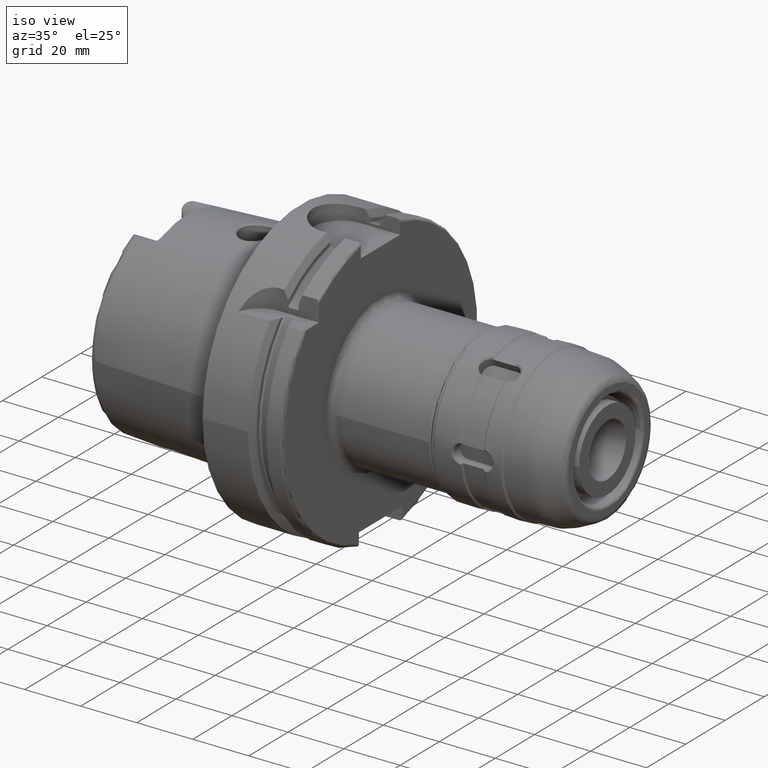
[diagram: clean part render]
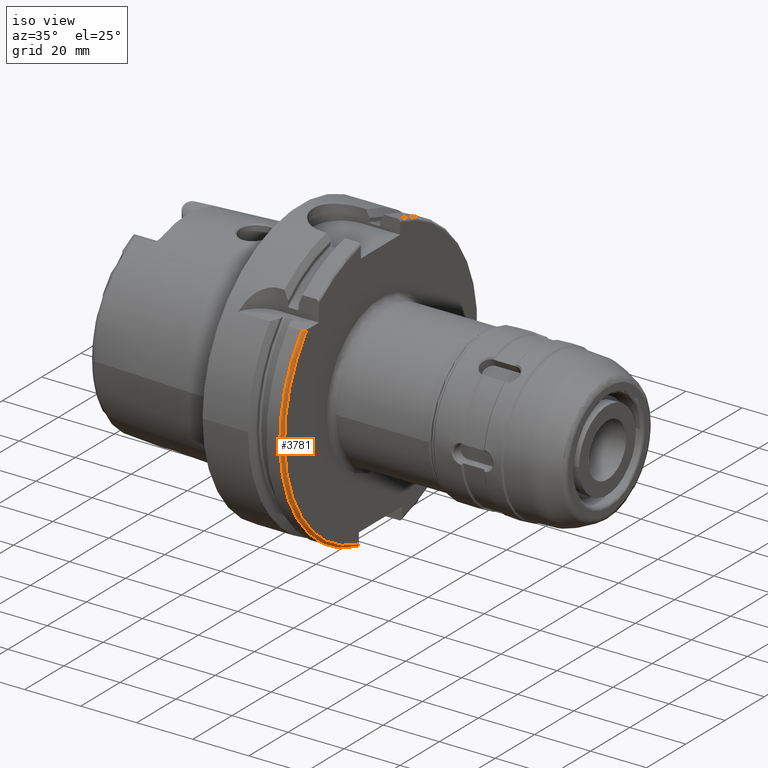
[diagram: same view with one face highlighted and labeled with its STEP entity id]
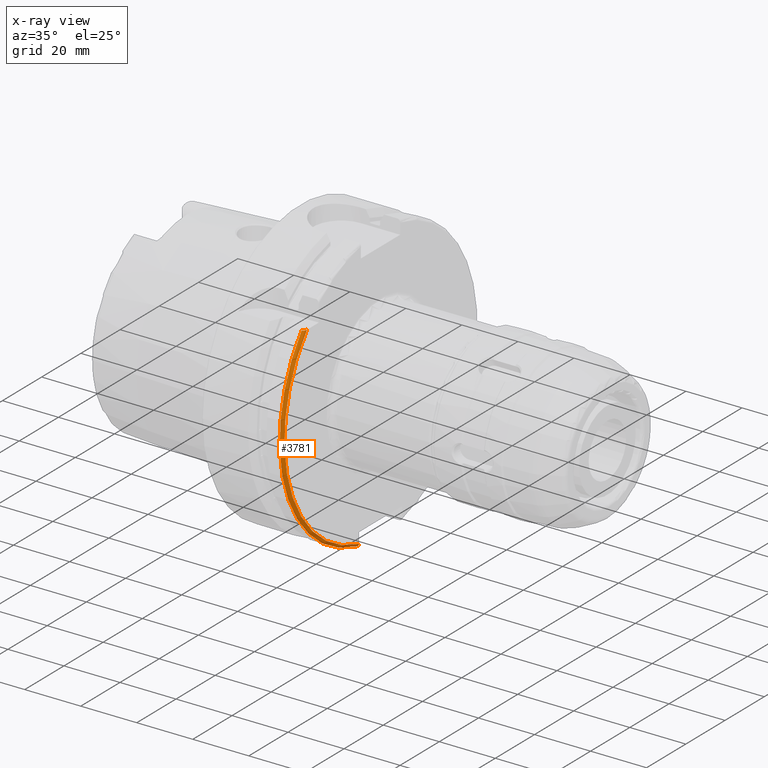
[diagram: x-ray of the same camera — body ghosted, the highlighted face saturated]
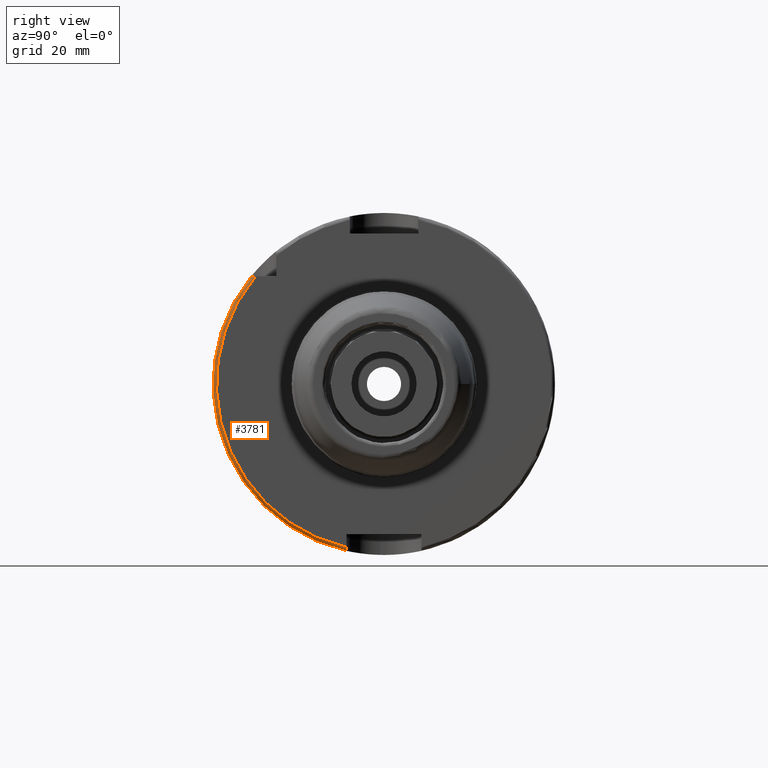
[diagram: same view with one face highlighted and labeled with its STEP entity id]
A machine part, iso view. The second image highlights one B-rep face of the part: STEP entity #3781.
The next image is the same camera in x-ray: the body ghosted, the highlighted face saturated — about 0% of this face is hidden behind the body in this view.
A second angle (right view) of the same face is appended — the face is thin or edge-on in the first view.
In plain terms, the highlighted toroidal blend (fillet) surface has major radius 49 mm and minor (blend) radius 1 mm.
Its self-contained STEP definition (entity closure, byte-faithful):
#103=B_SPLINE_CURVE_WITH_KNOTS('',3,(#6637,#6638,#6639,#6640,#6641,#6642,
#6643,#6644,#6645,#6646),.UNSPECIFIED.,.F.,.F.,(4,2,2,2,4),(-0.170825962094808,
-0.118543630596578,-0.0729156509442915,-0.0340271521483428,0.),
 .UNSPECIFIED.);
#113=B_SPLINE_CURVE_WITH_KNOTS('',3,(#6830,#6831,#6832,#6833,#6834,#6835,
#6836,#6837,#6838,#6839),.UNSPECIFIED.,.F.,.F.,(4,2,2,2,4),(0.,0.0367272650241839,
0.0739245844742874,0.111709319934006,0.150007250748607),.UNSPECIFIED.);
#812=FACE_OUTER_BOUND('',#1030,.T.);
#1030=EDGE_LOOP('',(#2861,#2862,#2863,#2864));
#1202=CIRCLE('',#4019,49.);
#1281=CIRCLE('',#4160,50.);
#1465=VERTEX_POINT('',#5624);
#1466=VERTEX_POINT('',#5626);
#1598=VERTEX_POINT('',#6635);
#1629=VERTEX_POINT('',#6829);
#1886=EDGE_CURVE('',#1465,#1466,#1202,.T.);
#2052=EDGE_CURVE('',#1465,#1598,#103,.T.);
#2096=EDGE_CURVE('',#1629,#1466,#113,.T.);
#2114=EDGE_CURVE('',#1598,#1629,#1281,.T.);
#2861=ORIENTED_EDGE('',*,*,#2052,.T.);
#2862=ORIENTED_EDGE('',*,*,#2114,.T.);
#2863=ORIENTED_EDGE('',*,*,#2096,.T.);
#2864=ORIENTED_EDGE('',*,*,#1886,.F.);
#3699=TOROIDAL_SURFACE('',#4159,49.,1.);
#3781=ADVANCED_FACE('',(#812),#3699,.T.);
#4019=AXIS2_PLACEMENT_3D('',#5627,#4512,#4513);
#4159=AXIS2_PLACEMENT_3D('',#6904,#4873,#4874);
#4160=AXIS2_PLACEMENT_3D('',#6905,#4875,#4876);
#4512=DIRECTION('center_axis',(1.,0.,0.));
#4513=DIRECTION('ref_axis',(0.,0.,-1.));
#4873=DIRECTION('center_axis',(1.,0.,0.));
#4874=DIRECTION('ref_axis',(0.,0.,-1.));
#4875=DIRECTION('center_axis',(1.,0.,0.));
#4876=DIRECTION('ref_axis',(0.,0.,-1.));
#5624=CARTESIAN_POINT('',(29.,-37.5333185316726,31.5));
#5626=CARTESIAN_POINT('',(29.,-11.,-47.7493455452533));
#5627=CARTESIAN_POINT('Origin',(29.,0.,0.));
#6635=CARTESIAN_POINT('',(28.,-38.8297566307078,31.5));
#6637=CARTESIAN_POINT('Ctrl Pts',(29.,-37.5333185316726,31.5));
#6638=CARTESIAN_POINT('Ctrl Pts',(29.,-37.7075929700001,31.5));
#6639=CARTESIAN_POINT('Ctrl Pts',(28.9664820083304,-37.9140187901503,31.5));
#6640=CARTESIAN_POINT('Ctrl Pts',(28.8572425149189,-38.2215616508799,31.5));
#6641=CARTESIAN_POINT('Ctrl Pts',(28.7693181429129,-38.3814988424326,31.5));
#6642=CARTESIAN_POINT('Ctrl Pts',(28.5860354601279,-38.5954486383736,31.5));
#6643=CARTESIAN_POINT('Ctrl Pts',(28.4650491410143,-38.6932205975694,31.5));
#6644=CARTESIAN_POINT('Ctrl Pts',(28.2458099245109,-38.7981421072727,31.5));
#6645=CARTESIAN_POINT('Ctrl Pts',(28.1134238404945,-38.8297566307078,31.5));
#6646=CARTESIAN_POINT('Ctrl Pts',(28.,-38.8297566307078,31.5));
#6829=CARTESIAN_POINT('',(28.,-11.,-48.7749935930288));
#6830=CARTESIAN_POINT('Ctrl Pts',(28.,-11.,-48.7749935930288));
#6831=CARTESIAN_POINT('Ctrl Pts',(28.1224242167473,-11.,-48.7749935930288));
#6832=CARTESIAN_POINT('Ctrl Pts',(28.2664089378791,-11.,-48.7458273107991));
#6833=CARTESIAN_POINT('Ctrl Pts',(28.4935811491945,-11.,-48.6503638235243));
#6834=CARTESIAN_POINT('Ctrl Pts',(28.6165742030546,-11.,-48.5666323605576));
#6835=CARTESIAN_POINT('Ctrl Pts',(28.7919641478885,-11.,-48.3885636593617));
#6836=CARTESIAN_POINT('Ctrl Pts',(28.8748308300651,-11.,-48.2621670900838));
#6837=CARTESIAN_POINT('Ctrl Pts',(28.9706639476237,-11.,-48.0273618911654));
#6838=CARTESIAN_POINT('Ctrl Pts',(29.,-11.,-47.8770053146353));
#6839=CARTESIAN_POINT('Ctrl Pts',(29.,-11.,-47.7493455452533));
#6904=CARTESIAN_POINT('Origin',(28.,0.,0.));
#6905=CARTESIAN_POINT('Origin',(28.,0.,0.));